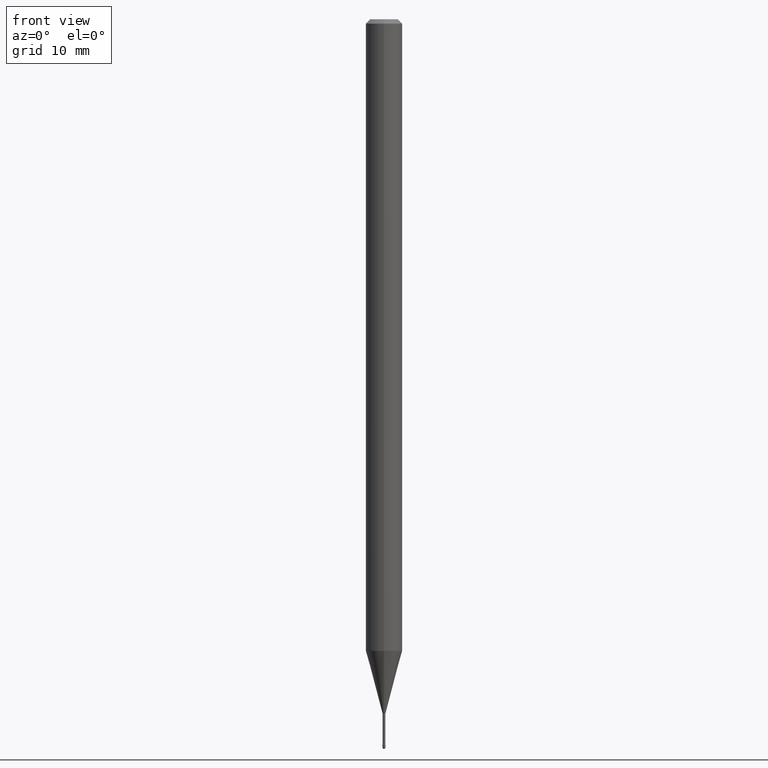
[diagram: clean part render]
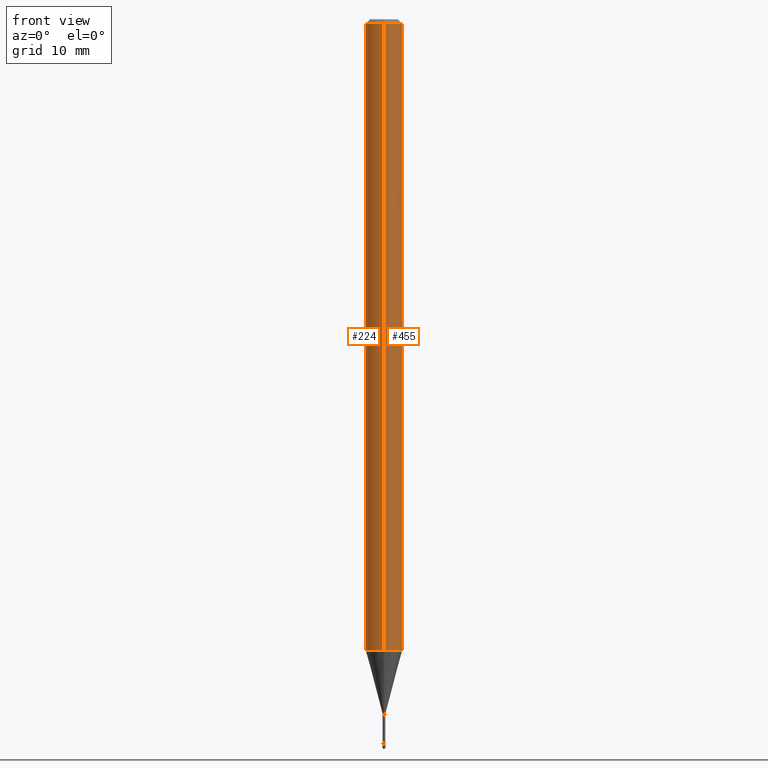
[diagram: same view with one multi-face feature highlighted, each face labeled with its STEP entity id]
A machine part, front view. The highlighted faces form ONE feature: a constant-radius fillet chain: 2 tangent blend faces with common blend radius 1.5875 mm. The faces share edges in the B-rep.
Their STEP definitions:
[1] entity #224 (Cylinder):
#2 = DIRECTION ( 'NONE',  ( -2.446185364487664045E-29, 3.490455186569959815E-15, 1.000000000000000000 ) ) ;
#22 = CARTESIAN_POINT ( 'NONE',  ( -1.169113584055446105E-44, 1.669184350826100908E-30, 4.780733988912460139E-16 ) ) ;
#25 = DIRECTION ( 'NONE',  ( -2.446185364487664325E-29, 3.490455186569959815E-15, 1.000000000000000000 ) ) ;
#30 = DIRECTION ( 'NONE',  ( -2.446185364487664325E-29, 3.490455186569959815E-15, 1.000000000000000000 ) ) ;
#41 = VERTEX_POINT ( 'NONE', #507 ) ;
#48 = DIRECTION ( 'NONE',  ( -6.982962677686265922E-15, -1.000000000000000000, 4.370956789862821150E-15 ) ) ;
#65 = ORIENTED_EDGE ( 'NONE', *, *, #310, .T. ) ;
#91 = EDGE_CURVE ( 'NONE', #464, #274, #218, .T. ) ;
#93 = DIRECTION ( 'NONE',  ( -2.446185364487664325E-29, 3.490455186569959815E-15, 1.000000000000000000 ) ) ;
#113 = FACE_OUTER_BOUND ( 'NONE', #431, .T. ) ;
#117 = VERTEX_POINT ( 'NONE', #261 ) ;
#136 = CIRCLE ( 'NONE', #226, 0.06250000000000000000 ) ;
#182 = CARTESIAN_POINT ( 'NONE',  ( -4.364351673553916201E-16, -0.06250000000000000000, 6.962268480518685024E-16 ) ) ;
#184 = VECTOR ( 'NONE', #2, 39.37007874015748143 ) ;
#193 = AXIS2_PLACEMENT_3D ( 'NONE', #22, #30, #230 ) ;
#218 = LINE ( 'NONE', #393, #184 ) ;
#224 = ADVANCED_FACE ( 'NONE', ( #113 ), #329, .T. ) ;
#226 = AXIS2_PLACEMENT_3D ( 'NONE', #303, #93, #48 ) ;
#230 = DIRECTION ( 'NONE',  ( -6.982962677686265922E-15, -1.000000000000000000, 3.490455186569959421E-15 ) ) ;
#261 = CARTESIAN_POINT ( 'NONE',  ( -4.364351673553912750E-16, -0.06250000000000005551, -0.01499999999999986587 ) ) ;
#274 = VERTEX_POINT ( 'NONE', #438 ) ;
#303 = CARTESIAN_POINT ( 'NONE',  ( 5.294248317323680554E-29, -7.554348401582429406E-15, -2.164287463322519312 ) ) ;
#306 = AXIS2_PLACEMENT_3D ( 'NONE', #424, #25, #412 ) ;
#310 = EDGE_CURVE ( 'NONE', #41, #117, #491, .T. ) ;
#329 = CYLINDRICAL_SURFACE ( 'NONE', #193, 0.06250000000000000000 ) ;
#349 = CIRCLE ( 'NONE', #306, 0.06250000000000000000 ) ;
#362 = DIRECTION ( 'NONE',  ( -2.446185364487664045E-29, 3.490455186569959815E-15, 1.000000000000000000 ) ) ;
#385 = ORIENTED_EDGE ( 'NONE', *, *, #463, .T. ) ;
#393 = CARTESIAN_POINT ( 'NONE',  ( 4.440892098500625669E-16, 0.06250000000000000000, 2.599199497306235748E-16 ) ) ;
#394 = CARTESIAN_POINT ( 'NONE',  ( 4.440892098501154699E-16, 0.06249999999999243661, -2.164287463322519756 ) ) ;
#412 = DIRECTION ( 'NONE',  ( -6.982962677686265922E-15, -1.000000000000000000, 3.483106191921935554E-15 ) ) ;
#420 = EDGE_CURVE ( 'NONE', #274, #117, #349, .T. ) ;
#422 = ORIENTED_EDGE ( 'NONE', *, *, #91, .F. ) ;
#424 = CARTESIAN_POINT ( 'NONE',  ( 3.669278046731516912E-31, -5.235682779854968492E-17, -0.01500000000000008271 ) ) ;
#431 = EDGE_LOOP ( 'NONE', ( #422, #385, #65, #514 ) ) ;
#438 = CARTESIAN_POINT ( 'NONE',  ( 4.440892098501159629E-16, 0.06249999999999995837, -0.01500000000000030129 ) ) ;
#463 = EDGE_CURVE ( 'NONE', #464, #41, #136, .T. ) ;
#464 = VERTEX_POINT ( 'NONE', #394 ) ;
#470 = VECTOR ( 'NONE', #362, 39.37007874015748143 ) ;
#491 = LINE ( 'NONE', #182, #470 ) ;
#507 = CARTESIAN_POINT ( 'NONE',  ( -4.364351673553387664E-16, -0.06250000000000757727, -2.164287463322519312 ) ) ;
#514 = ORIENTED_EDGE ( 'NONE', *, *, #420, .F. ) ;
[2] entity #455 (Cylinder):
#2 = DIRECTION ( 'NONE',  ( -2.446185364487664045E-29, 3.490455186569959815E-15, 1.000000000000000000 ) ) ;
#17 = DIRECTION ( 'NONE',  ( -2.446185364487664325E-29, 3.490455186569959815E-15, 1.000000000000000000 ) ) ;
#21 = ORIENTED_EDGE ( 'NONE', *, *, #310, .F. ) ;
#41 = VERTEX_POINT ( 'NONE', #507 ) ;
#82 = ORIENTED_EDGE ( 'NONE', *, *, #91, .T. ) ;
#91 = EDGE_CURVE ( 'NONE', #464, #274, #218, .T. ) ;
#117 = VERTEX_POINT ( 'NONE', #261 ) ;
#125 = AXIS2_PLACEMENT_3D ( 'NONE', #505, #17, #187 ) ;
#129 = FACE_OUTER_BOUND ( 'NONE', #459, .T. ) ;
#135 = CARTESIAN_POINT ( 'NONE',  ( 3.669278046731516912E-31, -5.235682779854968492E-17, -0.01500000000000008271 ) ) ;
#145 = AXIS2_PLACEMENT_3D ( 'NONE', #566, #174, #478 ) ;
#166 = ORIENTED_EDGE ( 'NONE', *, *, #189, .F. ) ;
#174 = DIRECTION ( 'NONE',  ( -2.446185364487664325E-29, 3.490455186569959815E-15, 1.000000000000000000 ) ) ;
#180 = AXIS2_PLACEMENT_3D ( 'NONE', #135, #309, #440 ) ;
#182 = CARTESIAN_POINT ( 'NONE',  ( -4.364351673553916201E-16, -0.06250000000000000000, 6.962268480518685024E-16 ) ) ;
#184 = VECTOR ( 'NONE', #2, 39.37007874015748143 ) ;
#187 = DIRECTION ( 'NONE',  ( -6.982962677686265922E-15, -1.000000000000000000, 4.370956789862821150E-15 ) ) ;
#189 = EDGE_CURVE ( 'NONE', #117, #274, #404, .T. ) ;
#218 = LINE ( 'NONE', #393, #184 ) ;
#229 = CIRCLE ( 'NONE', #125, 0.06250000000000000000 ) ;
#233 = EDGE_CURVE ( 'NONE', #41, #464, #229, .T. ) ;
#254 = ORIENTED_EDGE ( 'NONE', *, *, #233, .T. ) ;
#261 = CARTESIAN_POINT ( 'NONE',  ( -4.364351673553912750E-16, -0.06250000000000005551, -0.01499999999999986587 ) ) ;
#274 = VERTEX_POINT ( 'NONE', #438 ) ;
#309 = DIRECTION ( 'NONE',  ( -2.446185364487664325E-29, 3.490455186569959815E-15, 1.000000000000000000 ) ) ;
#310 = EDGE_CURVE ( 'NONE', #41, #117, #491, .T. ) ;
#362 = DIRECTION ( 'NONE',  ( -2.446185364487664045E-29, 3.490455186569959815E-15, 1.000000000000000000 ) ) ;
#393 = CARTESIAN_POINT ( 'NONE',  ( 4.440892098500625669E-16, 0.06250000000000000000, 2.599199497306235748E-16 ) ) ;
#394 = CARTESIAN_POINT ( 'NONE',  ( 4.440892098501154699E-16, 0.06249999999999243661, -2.164287463322519756 ) ) ;
#404 = CIRCLE ( 'NONE', #180, 0.06250000000000000000 ) ;
#438 = CARTESIAN_POINT ( 'NONE',  ( 4.440892098501159629E-16, 0.06249999999999995837, -0.01500000000000030129 ) ) ;
#440 = DIRECTION ( 'NONE',  ( -6.982962677686265922E-15, -1.000000000000000000, 3.483106191921935554E-15 ) ) ;
#455 = ADVANCED_FACE ( 'NONE', ( #129 ), #563, .T. ) ;
#459 = EDGE_LOOP ( 'NONE', ( #254, #82, #166, #21 ) ) ;
#464 = VERTEX_POINT ( 'NONE', #394 ) ;
#470 = VECTOR ( 'NONE', #362, 39.37007874015748143 ) ;
#478 = DIRECTION ( 'NONE',  ( -6.982962677686265922E-15, -1.000000000000000000, 3.490455186569959421E-15 ) ) ;
#491 = LINE ( 'NONE', #182, #470 ) ;
#505 = CARTESIAN_POINT ( 'NONE',  ( 5.294248317323680554E-29, -7.554348401582429406E-15, -2.164287463322519312 ) ) ;
#507 = CARTESIAN_POINT ( 'NONE',  ( -4.364351673553387664E-16, -0.06250000000000757727, -2.164287463322519312 ) ) ;
#563 = CYLINDRICAL_SURFACE ( 'NONE', #145, 0.06250000000000000000 ) ;
#566 = CARTESIAN_POINT ( 'NONE',  ( -1.169113584055446105E-44, 1.669184350826100908E-30, 4.780733988912460139E-16 ) ) ;